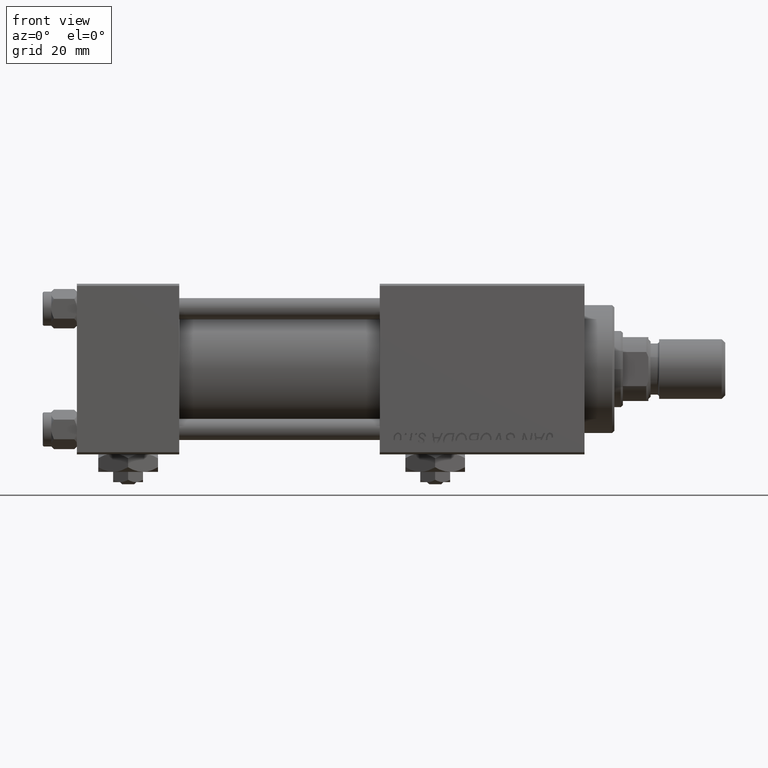
[diagram: clean part render]
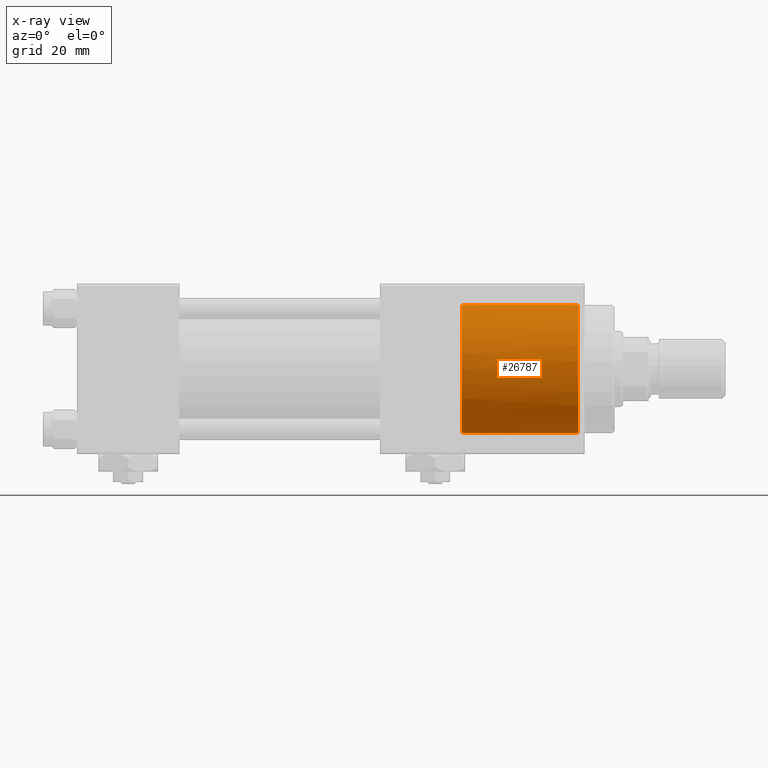
[diagram: x-ray — body ghosted, one internal face saturated and labeled with its STEP entity id]
A machine part, front view, then the same camera in x-ray: the body is ghosted and one INTERNAL B-rep face — a face not visible from any outside direction — is saturated and labeled: STEP entity #26787.
In plain terms, the highlighted cylindrical surface (partial cylindrical patch) has radius 15 mm, axis along (1, 0, 0).
Its self-contained STEP definition (entity closure, byte-faithful):
#2229 = LINE ( 'NONE', #18449, #42507 ) ;
#4065 = AXIS2_PLACEMENT_3D ( 'NONE', #38044, #25298, #41502 ) ;
#4479 = ORIENTED_EDGE ( 'NONE', *, *, #8352, .F. ) ;
#4602 = CARTESIAN_POINT ( 'NONE',  ( 90.55605924908620352, -0.6456608678131530166, -14.98945420583751442 ) ) ;
#4812 = EDGE_LOOP ( 'NONE', ( #39165, #36336, #45930, #5613, #38572, #4479 ) ) ;
#5232 = CARTESIAN_POINT ( 'NONE',  ( 117.5000000000000000, 1.836970198721029589E-15, 15.00000000000000000 ) ) ;
#5613 = ORIENTED_EDGE ( 'NONE', *, *, #44845, .F. ) ;
#6055 = VERTEX_POINT ( 'NONE', #40437 ) ;
#6513 = AXIS2_PLACEMENT_3D ( 'NONE', #12922, #23250, #26709 ) ;
#7475 = CARTESIAN_POINT ( 'NONE',  ( 90.30000000000001137, -1.899052395280420136, 14.87930105885285670 ) ) ;
#8352 = EDGE_CURVE ( 'NONE', #12692, #31206, #51615, .T. ) ;
#10031 = DIRECTION ( 'NONE',  ( 1.000000000000000000, 0.000000000000000000, 0.000000000000000000 ) ) ;
#11439 = VERTEX_POINT ( 'NONE', #5232 ) ;
#12692 = VERTEX_POINT ( 'NONE', #7475 ) ;
#12922 = CARTESIAN_POINT ( 'NONE',  ( 90.30000000000001137, 0.000000000000000000, 0.000000000000000000 ) ) ;
#14975 = CARTESIAN_POINT ( 'NONE',  ( 90.30000000000001137, -1.899052395275083960, -14.87930105885353527 ) ) ;
#15497 = EDGE_CURVE ( 'NONE', #18940, #12692, #19491, .T. ) ;
#16073 = CARTESIAN_POINT ( 'NONE',  ( 90.30000000000001137, -1.899052395280420136, 14.87930105885285670 ) ) ;
#17064 = EDGE_CURVE ( 'NONE', #6055, #31206, #21306, .T. ) ;
#18449 = CARTESIAN_POINT ( 'NONE',  ( 90.30000000000001137, 0.000000000000000000, -15.00000000000000000 ) ) ;
#18940 = VERTEX_POINT ( 'NONE', #35105 ) ;
#19249 = CIRCLE ( 'NONE', #42168, 15.00000000000000000 ) ;
#19491 = B_SPLINE_CURVE_WITH_KNOTS ( 'NONE', 3,
 ( #23784, #41032, #40506, #36018, #52487, #16073 ),
 .UNSPECIFIED., .F., .F.,
 ( 4, 2, 4 ),
 ( 0.001923267627926015643, 0.002881828648815649985, 0.003840389669705283893 ),
 .UNSPECIFIED. ) ;
#21138 = FACE_OUTER_BOUND ( 'NONE', #4812, .T. ) ;
#21306 = B_SPLINE_CURVE_WITH_KNOTS ( 'NONE', 3,
 ( #32764, #45521, #4602, #48481, #49254, #40487 ),
 .UNSPECIFIED., .F., .F.,
 ( 4, 2, 4 ),
 ( 0.001923267627920477972, 0.002881828648807242647, 0.003840389669694007756 ),
 .UNSPECIFIED. ) ;
#23250 = DIRECTION ( 'NONE',  ( 1.000000000000000000, -0.000000000000000000, -0.000000000000000000 ) ) ;
#23784 = CARTESIAN_POINT ( 'NONE',  ( 90.58000000000154728, 1.836897619300433381E-15, 15.00000000000000000 ) ) ;
#24188 = CARTESIAN_POINT ( 'NONE',  ( 117.5000000000000000, 0.000000000000000000, -15.00000000000000000 ) ) ;
#25298 = DIRECTION ( 'NONE',  ( 1.000000000000000000, 0.000000000000000000, 0.000000000000000000 ) ) ;
#26590 = EDGE_CURVE ( 'NONE', #11439, #29842, #19249, .T. ) ;
#26709 = DIRECTION ( 'NONE',  ( 0.000000000000000000, 0.000000000000000000, -1.000000000000000000 ) ) ;
#26787 = ADVANCED_FACE ( 'NONE', ( #21138 ), #49322, .F. ) ;
#27192 = VECTOR ( 'NONE', #49454, 1000.000000000000000 ) ;
#29842 = VERTEX_POINT ( 'NONE', #24188 ) ;
#31206 = VERTEX_POINT ( 'NONE', #14975 ) ;
#32764 = CARTESIAN_POINT ( 'NONE',  ( 90.58000000000001251, -7.257782860942566163E-20, -15.00000000000000000 ) ) ;
#35105 = CARTESIAN_POINT ( 'NONE',  ( 90.58000000000154728, 1.836897619300433381E-15, 15.00000000000000000 ) ) ;
#35275 = CARTESIAN_POINT ( 'NONE',  ( 117.5000000000000000, 0.000000000000000000, 0.000000000000000000 ) ) ;
#36018 = CARTESIAN_POINT ( 'NONE',  ( 90.46247493449395449, -1.278752734038846484, 14.94875937294843737 ) ) ;
#36336 = ORIENTED_EDGE ( 'NONE', *, *, #39436, .T. ) ;
#38044 = CARTESIAN_POINT ( 'NONE',  ( 90.30000000000001137, 0.000000000000000000, 0.000000000000000000 ) ) ;
#38572 = ORIENTED_EDGE ( 'NONE', *, *, #17064, .T. ) ;
#39165 = ORIENTED_EDGE ( 'NONE', *, *, #15497, .F. ) ;
#39436 = EDGE_CURVE ( 'NONE', #18940, #11439, #52401, .T. ) ;
#40437 = CARTESIAN_POINT ( 'NONE',  ( 90.58000000000001251, -7.257782860942566163E-20, -15.00000000000000000 ) ) ;
#40487 = CARTESIAN_POINT ( 'NONE',  ( 90.30000000000001137, -1.899052395275083960, -14.87930105885353527 ) ) ;
#40506 = CARTESIAN_POINT ( 'NONE',  ( 90.55605924908761040, -0.6456608678150235203, 14.98945420583744870 ) ) ;
#41032 = CARTESIAN_POINT ( 'NONE',  ( 90.58000000000156149, -0.3230844264541308797, 14.99999999999999822 ) ) ;
#41502 = DIRECTION ( 'NONE',  ( 0.000000000000000000, 0.000000000000000000, -1.000000000000000000 ) ) ;
#42168 = AXIS2_PLACEMENT_3D ( 'NONE', #35275, #10031, #43521 ) ;
#42507 = VECTOR ( 'NONE', #46095, 1000.000000000000000 ) ;
#43521 = DIRECTION ( 'NONE',  ( 0.000000000000000000, 0.000000000000000000, 1.000000000000000000 ) ) ;
#44845 = EDGE_CURVE ( 'NONE', #6055, #29842, #2229, .T. ) ;
#45212 = CARTESIAN_POINT ( 'NONE',  ( 90.30000000000001137, 1.836970198721029589E-15, 15.00000000000000000 ) ) ;
#45521 = CARTESIAN_POINT ( 'NONE',  ( 90.57999999999999829, -0.3230844264531260723, -14.99999999999999822 ) ) ;
#45930 = ORIENTED_EDGE ( 'NONE', *, *, #26590, .T. ) ;
#46095 = DIRECTION ( 'NONE',  ( 1.000000000000000000, -0.000000000000000000, -0.000000000000000000 ) ) ;
#48481 = CARTESIAN_POINT ( 'NONE',  ( 90.46247493449305921, -1.278752734035207617, -14.94875937294873225 ) ) ;
#49254 = CARTESIAN_POINT ( 'NONE',  ( 90.39284622331618380, -1.591040247560122856, -14.91861279833500120 ) ) ;
#49322 = CYLINDRICAL_SURFACE ( 'NONE', #6513, 15.00000000000000000 ) ;
#49454 = DIRECTION ( 'NONE',  ( 1.000000000000000000, -0.000000000000000000, -0.000000000000000000 ) ) ;
#51615 = CIRCLE ( 'NONE', #4065, 15.00000000000000000 ) ;
#52401 = LINE ( 'NONE', #45212, #27192 ) ;
#52487 = CARTESIAN_POINT ( 'NONE',  ( 90.39284622331669539, -1.591040247564623700, 14.91861279833453757 ) ) ;